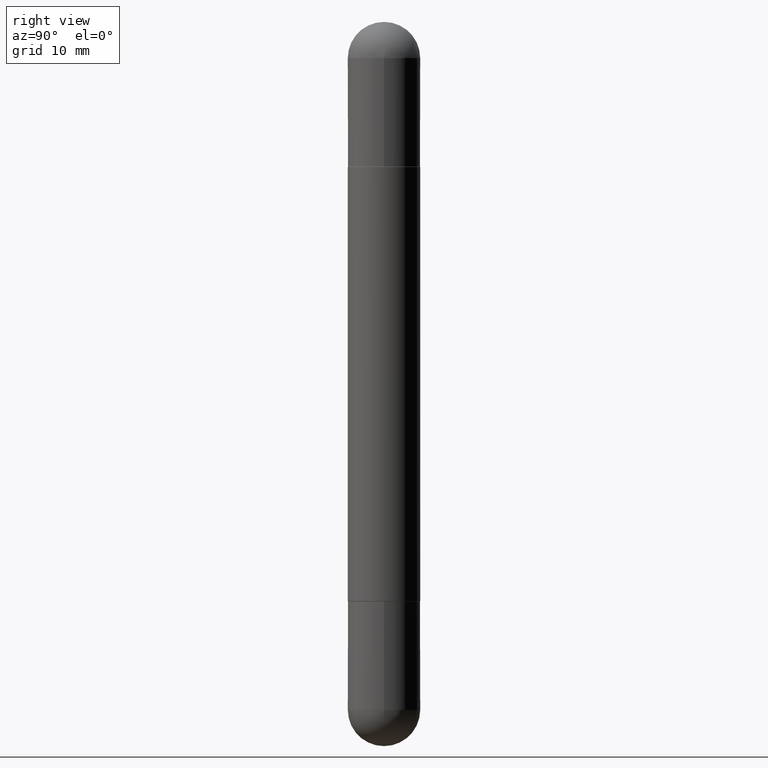
[diagram: clean part render]
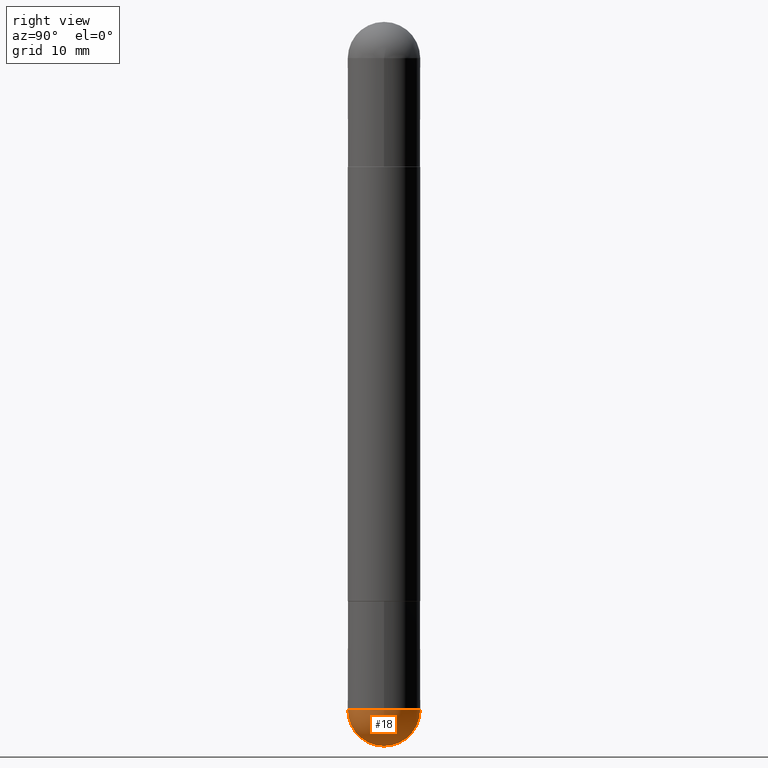
[diagram: same view with one face highlighted and labeled with its STEP entity id]
A machine part, right view. The second image highlights one B-rep face of the part: STEP entity #18.
In plain terms, the highlighted spherical surface has radius 3.175 mm.
Its self-contained STEP definition (entity closure, byte-faithful):
#10 = CARTESIAN_POINT ( 'NONE',  ( 5.807988414689700538E-29, -8.292268179752471696E-15, -2.375000000000000000 ) ) ;
#17 = CARTESIAN_POINT ( 'NONE',  ( 0.1250000000000000000, -8.510485763430165164E-15, -2.375000000000000000 ) ) ;
#18 = ADVANCED_FACE ( 'NONE', ( #243 ), #495, .T. ) ;
#38 = AXIS2_PLACEMENT_3D ( 'NONE', #123, #55, #245 ) ;
#41 = EDGE_CURVE ( 'NONE', #190, #569, #513, .T. ) ;
#44 = EDGE_LOOP ( 'NONE', ( #620, #373, #735, #159 ) ) ;
#55 = DIRECTION ( 'NONE',  ( -1.000000000000000000, 6.982962677686265922E-15, -4.883557194083112901E-29 ) ) ;
#62 = AXIS2_PLACEMENT_3D ( 'NONE', #576, #145, #189 ) ;
#123 = CARTESIAN_POINT ( 'NONE',  ( 5.476868636775814291E-29, -8.766450547892521992E-15, -2.375000000000000000 ) ) ;
#126 = DIRECTION ( 'NONE',  ( -2.445468806185136597E-29, 3.491481338843145583E-15, 1.000000000000000000 ) ) ;
#131 = DIRECTION ( 'NONE',  ( -2.445468806185136597E-29, 3.491481338843145583E-15, 1.000000000000000000 ) ) ;
#145 = DIRECTION ( 'NONE',  ( 1.000000000000000000, -6.982962677686265922E-15, 4.883557194083112340E-29 ) ) ;
#159 = ORIENTED_EDGE ( 'NONE', *, *, #41, .F. ) ;
#188 = EDGE_CURVE ( 'NONE', #569, #660, #239, .T. ) ;
#189 = DIRECTION ( 'NONE',  ( 6.982962677686265133E-15, 1.000000000000000000, 0.000000000000000000 ) ) ;
#190 = VERTEX_POINT ( 'NONE', #391 ) ;
#239 = CIRCLE ( 'NONE', #737, 0.1250000000000000000 ) ;
#243 = FACE_OUTER_BOUND ( 'NONE', #44, .T. ) ;
#245 = DIRECTION ( 'NONE',  ( 6.982962677686265922E-15, 1.000000000000000000, -4.370956789862814839E-15 ) ) ;
#368 = VERTEX_POINT ( 'NONE', #434 ) ;
#373 = ORIENTED_EDGE ( 'NONE', *, *, #564, .T. ) ;
#375 = DIRECTION ( 'NONE',  ( 1.000000000000000000, -6.982962677686270655E-15, 0.000000000000000000 ) ) ;
#391 = CARTESIAN_POINT ( 'NONE',  ( -8.881784197000694204E-16, -0.1250000000000086320, -2.374999999999999556 ) ) ;
#418 = AXIS2_PLACEMENT_3D ( 'NONE', #756, #126, #375 ) ;
#426 = EDGE_CURVE ( 'NONE', #368, #190, #530, .T. ) ;
#434 = CARTESIAN_POINT ( 'NONE',  ( 5.787897026856327965E-29, -9.195231672753244292E-15, -2.500000000000000444 ) ) ;
#486 = AXIS2_PLACEMENT_3D ( 'NONE', #812, #624, #498 ) ;
#495 = SPHERICAL_SURFACE ( 'NONE', #38, 0.1250000000000001943 ) ;
#498 = DIRECTION ( 'NONE',  ( -7.105427357601000281E-15, -1.000000000000000000, 0.000000000000000000 ) ) ;
#513 = CIRCLE ( 'NONE', #418, 0.1250000000000000000 ) ;
#519 = DIRECTION ( 'NONE',  ( 1.000000000000000000, -6.982962677686270655E-15, 0.000000000000000000 ) ) ;
#530 = CIRCLE ( 'NONE', #486, 0.1250000000000001943 ) ;
#564 = EDGE_CURVE ( 'NONE', #368, #660, #575, .T. ) ;
#569 = VERTEX_POINT ( 'NONE', #17 ) ;
#575 = CIRCLE ( 'NONE', #62, 0.1250000000000001943 ) ;
#576 = CARTESIAN_POINT ( 'NONE',  ( 5.476868636775814291E-29, -8.766450547892521992E-15, -2.375000000000000000 ) ) ;
#601 = CARTESIAN_POINT ( 'NONE',  ( 8.728703347108403340E-16, 0.1249999999999915623, -2.375000000000000888 ) ) ;
#620 = ORIENTED_EDGE ( 'NONE', *, *, #426, .F. ) ;
#624 = DIRECTION ( 'NONE',  ( -1.000000000000000000, 7.105427357601001070E-15, -4.926315508542082329E-29 ) ) ;
#660 = VERTEX_POINT ( 'NONE', #601 ) ;
#735 = ORIENTED_EDGE ( 'NONE', *, *, #188, .F. ) ;
#737 = AXIS2_PLACEMENT_3D ( 'NONE', #10, #131, #519 ) ;
#756 = CARTESIAN_POINT ( 'NONE',  ( 5.807988414689700538E-29, -8.292268179752471696E-15, -2.375000000000000000 ) ) ;
#812 = CARTESIAN_POINT ( 'NONE',  ( 5.476868636775814291E-29, -8.766450547892521992E-15, -2.375000000000000000 ) ) ;